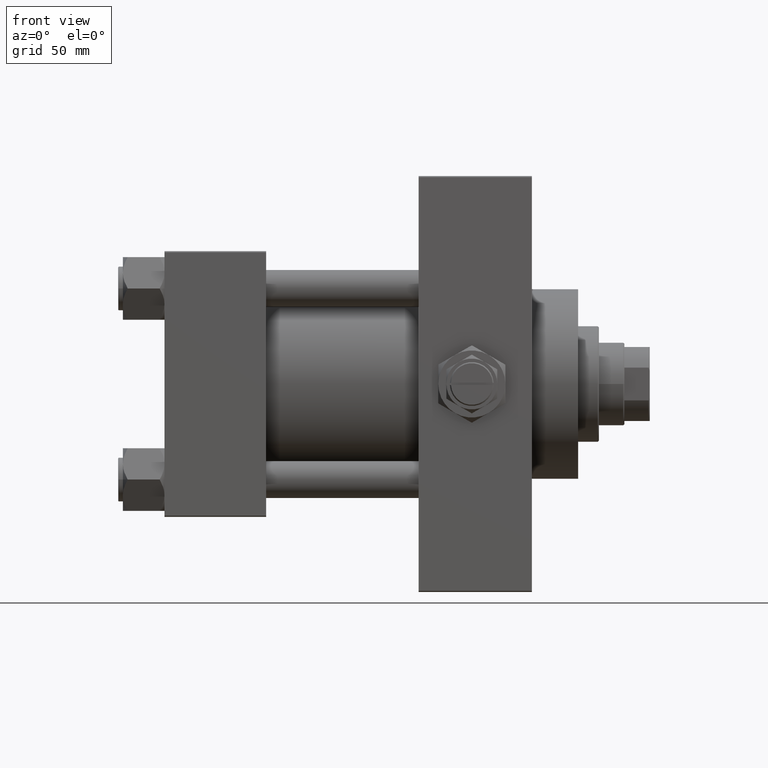
[diagram: clean part render]
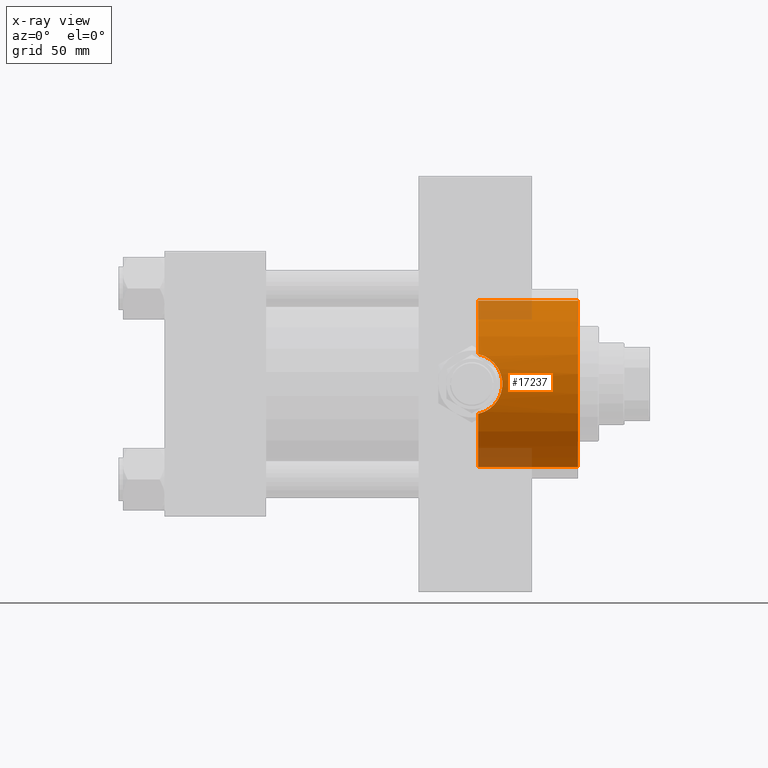
[diagram: x-ray — body ghosted, one internal face saturated and labeled with its STEP entity id]
A machine part, front view, then the same camera in x-ray: the body is ghosted and one INTERNAL B-rep face — a face not visible from any outside direction — is saturated and labeled: STEP entity #17237.
In plain terms, the highlighted cylindrical surface (partial cylindrical patch) has radius 36 mm, axis along (1, 0, 0).
Its self-contained STEP definition (entity closure, byte-faithful):
#1403 = CARTESIAN_POINT ( 'NONE',  ( 136.1132085380460239, -33.62715136930765425, 12.85386591978425663 ) ) ;
#2071 = VERTEX_POINT ( 'NONE', #22516 ) ;
#2217 = EDGE_CURVE ( 'NONE', #31049, #47736, #13772, .T. ) ;
#2276 = ORIENTED_EDGE ( 'NONE', *, *, #11950, .T. ) ;
#2954 = ORIENTED_EDGE ( 'NONE', *, *, #38616, .F. ) ;
#3315 = CARTESIAN_POINT ( 'NONE',  ( 135.7400000000000091, 0.000000000000000000, 0.000000000000000000 ) ) ;
#3647 = CARTESIAN_POINT ( 'NONE',  ( 146.0882787205803197, -35.95178749193545542, -1.899113185740341603 ) ) ;
#4637 = CARTESIAN_POINT ( 'NONE',  ( 140.2252811143993085, -34.25403786948010776, 11.07714144511488819 ) ) ;
#6801 = CARTESIAN_POINT ( 'NONE',  ( 179.0000000000000000, 0.000000000000000000, -36.00000000000000000 ) ) ;
#6964 = CARTESIAN_POINT ( 'NONE',  ( 179.0000000000000000, 0.000000000000000000, 0.000000000000000000 ) ) ;
#7390 = CARTESIAN_POINT ( 'NONE',  ( 145.1774292073409072, -35.63004118577010360, -5.159373866595180935 ) ) ;
#7635 = CARTESIAN_POINT ( 'NONE',  ( 138.5933060363426534, -33.94179174322902526, -12.00173046293030410 ) ) ;
#7791 = VERTEX_POINT ( 'NONE', #43758 ) ;
#8131 = CARTESIAN_POINT ( 'NONE',  ( 145.8947141785547501, -35.88162189390808265, -3.009955031685965121 ) ) ;
#8879 = CARTESIAN_POINT ( 'NONE',  ( 143.7169491878083250, -35.15742135833136928, 7.749599987799660639 ) ) ;
#9129 = CARTESIAN_POINT ( 'NONE',  ( 142.2706759706837261, -34.74024261417464743, 9.453842015368206120 ) ) ;
#10649 = CIRCLE ( 'NONE', #38632, 36.00000000000000000 ) ;
#10813 = CYLINDRICAL_SURFACE ( 'NONE', #46969, 36.00000000000000000 ) ;
#11147 = CARTESIAN_POINT ( 'NONE',  ( 142.7693593199377062, -34.87993829756945274, -8.914406653687468207 ) ) ;
#11639 = CARTESIAN_POINT ( 'NONE',  ( 143.0185801571961122, -34.95071279789109298, -8.633489739355312054 ) ) ;
#11881 = CARTESIAN_POINT ( 'NONE',  ( 144.1473667493317805, -35.28988197082104250, -7.145511571797283246 ) ) ;
#11950 = EDGE_CURVE ( 'NONE', #33811, #31049, #47247, .T. ) ;
#12637 = CARTESIAN_POINT ( 'NONE',  ( 145.5781868588421162, -35.76909572614820121, 4.086623809376312977 ) ) ;
#12817 = DIRECTION ( 'NONE',  ( 1.000000000000000000, -0.000000000000000000, -0.000000000000000000 ) ) ;
#12880 = CARTESIAN_POINT ( 'NONE',  ( 144.3364747806118942, -35.35134026915534378, 6.811177353909294574 ) ) ;
#13341 = ORIENTED_EDGE ( 'NONE', *, *, #27914, .T. ) ;
#13772 = CIRCLE ( 'NONE', #27349, 36.00000000000000000 ) ;
#15093 = VERTEX_POINT ( 'NONE', #28294 ) ;
#17237 = ADVANCED_FACE ( 'NONE', ( #40610 ), #10813, .F. ) ;
#18711 = CARTESIAN_POINT ( 'NONE',  ( 135.7400000000000091, 0.000000000000000000, 0.000000000000000000 ) ) ;
#18804 = DIRECTION ( 'NONE',  ( 1.000000000000000000, -0.000000000000000000, -0.000000000000000000 ) ) ;
#18893 = CARTESIAN_POINT ( 'NONE',  ( 146.1371322321481330, -35.96963868881438486, -1.525551129375368076 ) ) ;
#19816 = CARTESIAN_POINT ( 'NONE',  ( 135.7400000000000091, 0.000000000000000000, -36.00000000000000000 ) ) ;
#22516 = CARTESIAN_POINT ( 'NONE',  ( 135.7400000000000091, 0.000000000000000000, -36.00000000000000000 ) ) ;
#22640 = CARTESIAN_POINT ( 'NONE',  ( 145.7033546496754468, -35.81270017918525639, -3.737456918487963797 ) ) ;
#22819 = VECTOR ( 'NONE', #12817, 1000.000000000000000 ) ;
#22894 = CARTESIAN_POINT ( 'NONE',  ( 136.4863705348068947, -33.65758481786811984, -12.77480699814712217 ) ) ;
#23636 = CARTESIAN_POINT ( 'NONE',  ( 144.1394098962385613, -35.28849287670991686, 7.129014450017024274 ) ) ;
#23889 = CARTESIAN_POINT ( 'NONE',  ( 145.9629156845497846, -35.90633945151148509, 2.621651557121447595 ) ) ;
#24135 = CARTESIAN_POINT ( 'NONE',  ( 141.4323112275375252, -34.52915186654068691, 10.18835451941007619 ) ) ;
#24386 = CARTESIAN_POINT ( 'NONE',  ( 138.6051762912404399, -33.94373400491305404, 11.99626342902757870 ) ) ;
#24642 = CARTESIAN_POINT ( 'NONE',  ( 140.5375552836967188, -34.32141923167822739, 10.86712601324282623 ) ) ;
#25336 = DIRECTION ( 'NONE',  ( 0.000000000000000000, 0.000000000000000000, -1.000000000000000000 ) ) ;
#25581 = CIRCLE ( 'NONE', #39226, 36.00000000000000000 ) ;
#26122 = VECTOR ( 'NONE', #47004, 1000.000000000000000 ) ;
#26410 = CARTESIAN_POINT ( 'NONE',  ( 145.3202010958180210, -35.67919034582471483, -4.808835186596748024 ) ) ;
#27150 = CARTESIAN_POINT ( 'NONE',  ( 144.6959585139428555, -35.46825540645414776, -6.173441884947794556 ) ) ;
#27349 = AXIS2_PLACEMENT_3D ( 'NONE', #6964, #33989, #44524 ) ;
#27654 = CARTESIAN_POINT ( 'NONE',  ( 141.1417547516502111, -34.45915333924856583, 10.42213975181991259 ) ) ;
#27902 = CARTESIAN_POINT ( 'NONE',  ( 144.8859945304910184, -35.53010638142644240, 5.835162689468446295 ) ) ;
#27914 = EDGE_CURVE ( 'NONE', #15093, #7791, #42572, .T. ) ;
#28294 = CARTESIAN_POINT ( 'NONE',  ( 135.7400000000000091, -33.59671412504502541, -12.93293470176047677 ) ) ;
#28354 = EDGE_CURVE ( 'NONE', #33811, #7791, #25581, .T. ) ;
#28391 = CARTESIAN_POINT ( 'NONE',  ( 136.4830526523835204, -33.66353356555786291, 12.75854119602012560 ) ) ;
#28638 = CARTESIAN_POINT ( 'NONE',  ( 145.6909266299917363, -35.80898173995095846, 3.721805252510570039 ) ) ;
#30160 = CARTESIAN_POINT ( 'NONE',  ( 139.2634667834693687, -34.05975999988856984, -11.66637162473796963 ) ) ;
#30408 = CARTESIAN_POINT ( 'NONE',  ( 146.2197635704351910, -35.99991317782383504, -0.3899398427316206339 ) ) ;
#30655 = CARTESIAN_POINT ( 'NONE',  ( 179.0000000000000000, 4.408728476930470856E-15, 36.00000000000000000 ) ) ;
#30905 = CARTESIAN_POINT ( 'NONE',  ( 143.7286871753289006, -35.15866088695765512, -7.760569906701273446 ) ) ;
#31049 = VERTEX_POINT ( 'NONE', #30655 ) ;
#31255 = CARTESIAN_POINT ( 'NONE',  ( 135.7400000000000091, 4.408728476930470856E-15, 36.00000000000000000 ) ) ;
#31833 = LINE ( 'NONE', #19816, #22819 ) ;
#32146 = CARTESIAN_POINT ( 'NONE',  ( 146.1552577846638030, -35.97607714065905782, 1.508294515622385479 ) ) ;
#32391 = CARTESIAN_POINT ( 'NONE',  ( 139.2703969792703163, -34.06113284969205068, 11.66224338757623791 ) ) ;
#33811 = VERTEX_POINT ( 'NONE', #31255 ) ;
#33989 = DIRECTION ( 'NONE',  ( 1.000000000000000000, 0.000000000000000000, 0.000000000000000000 ) ) ;
#34180 = CARTESIAN_POINT ( 'NONE',  ( 135.7400000000000091, -33.59671412504502541, -12.93293470176047677 ) ) ;
#35664 = CARTESIAN_POINT ( 'NONE',  ( 146.2204654152534715, -36.00017091079580922, 0.7555805454783947051 ) ) ;
#36159 = CARTESIAN_POINT ( 'NONE',  ( 137.5630435524126085, -33.79252632900233522, 12.41317920266252095 ) ) ;
#36730 = EDGE_LOOP ( 'NONE', ( #46512, #2276, #46761, #46551, #2954, #13341 ) ) ;
#37504 = DIRECTION ( 'NONE',  ( 0.000000000000000000, 0.000000000000000000, -1.000000000000000000 ) ) ;
#37927 = CARTESIAN_POINT ( 'NONE',  ( 137.2054463598958591, -33.74086444373506311, -12.55550984369233447 ) ) ;
#38177 = CARTESIAN_POINT ( 'NONE',  ( 140.5474911551487480, -34.31910339503981078, -10.87982629903011045 ) ) ;
#38616 = EDGE_CURVE ( 'NONE', #15093, #2071, #10649, .T. ) ;
#38632 = AXIS2_PLACEMENT_3D ( 'NONE', #40981, #40511, #44258 ) ;
#39226 = AXIS2_PLACEMENT_3D ( 'NONE', #18711, #48265, #37504 ) ;
#39246 = CARTESIAN_POINT ( 'NONE',  ( 135.7400000000000091, 4.408728476930470856E-15, 36.00000000000000000 ) ) ;
#39412 = CARTESIAN_POINT ( 'NONE',  ( 142.7854413968719598, -34.88242835481357673, 8.920220469445172995 ) ) ;
#39914 = CARTESIAN_POINT ( 'NONE',  ( 137.2082429394940277, -33.74627601644314723, 12.53805090881422579 ) ) ;
#40511 = DIRECTION ( 'NONE',  ( 1.000000000000000000, 0.000000000000000000, 0.000000000000000000 ) ) ;
#40610 = FACE_OUTER_BOUND ( 'NONE', #36730, .T. ) ;
#40981 = CARTESIAN_POINT ( 'NONE',  ( 135.7400000000000091, 0.000000000000000000, 0.000000000000000000 ) ) ;
#42173 = CARTESIAN_POINT ( 'NONE',  ( 142.2521418842815990, -34.73862178565919123, -9.450126880761137826 ) ) ;
#42419 = CARTESIAN_POINT ( 'NONE',  ( 144.8655034412033729, -35.52464249944090113, -5.841125651952388864 ) ) ;
#42572 = B_SPLINE_CURVE_WITH_KNOTS ( 'NONE', 3,
 ( #34180, #22894, #37927, #7635, #30160, #38177, #45436, #45925, #42173, #11147, #11639, #30905, #11881, #27150, #42419, #7390, #26410, #22640, #8131, #3647, #18893, #49421, #30408, #35664, #32146, #23889, #43168, #28638, #12637, #43909, #27902, #12880, #23636, #8879, #43413, #39412, #9129, #24135, #27654, #24642, #4637, #32391, #24386, #36159, #39914, #28391, #1403, #47410 ),
 .UNSPECIFIED., .F., .F.,
 ( 4, 2, 2, 2, 2, 2, 2, 2, 2, 2, 2, 2, 2, 2, 2, 2, 2, 2, 2, 2, 2, 2, 2, 4 ),
 ( 0.000000000000000000, 0.002261541487190014185, 0.004523082974380028369, 0.006784624461570043855, 0.007915395205165046827, 0.009046165948760049799, 0.01130770743595010952, 0.01243847817954513851, 0.01356924892314016751, 0.01583079041033022896, 0.01696156115392526142, 0.01809233189752029042, 0.02035387338471035187, 0.02148464412830539128, 0.02261541487190042374, 0.02487695635909046438, 0.02600772710268548990, 0.02713849784628051195, 0.02940003933347055606, 0.03053081007706554689, 0.03166158082066054119, 0.03392312230785051591, 0.03505389305144546858, 0.03618466379504041430 ),
 .UNSPECIFIED. ) ;
#43168 = CARTESIAN_POINT ( 'NONE',  ( 145.8829549964506782, -35.87748714674541617, 2.990137726740099477 ) ) ;
#43413 = CARTESIAN_POINT ( 'NONE',  ( 143.4916658138077423, -35.08925744010397096, 8.051866093655579704 ) ) ;
#43758 = CARTESIAN_POINT ( 'NONE',  ( 135.7400000000000091, -33.59671412504501831, 12.93293470176048032 ) ) ;
#43909 = CARTESIAN_POINT ( 'NONE',  ( 145.1971085353886508, -35.63627862537938995, 5.154654075414369707 ) ) ;
#44258 = DIRECTION ( 'NONE',  ( 0.000000000000000000, 0.000000000000000000, -1.000000000000000000 ) ) ;
#44524 = DIRECTION ( 'NONE',  ( 0.000000000000000000, 0.000000000000000000, -1.000000000000000000 ) ) ;
#45436 = CARTESIAN_POINT ( 'NONE',  ( 141.1461456704165869, -34.45721300195066306, -10.43832106051816133 ) ) ;
#45925 = CARTESIAN_POINT ( 'NONE',  ( 141.9832966455934695, -34.66782771197624413, -9.705989920600368137 ) ) ;
#46512 = ORIENTED_EDGE ( 'NONE', *, *, #28354, .F. ) ;
#46551 = ORIENTED_EDGE ( 'NONE', *, *, #46771, .F. ) ;
#46761 = ORIENTED_EDGE ( 'NONE', *, *, #2217, .T. ) ;
#46771 = EDGE_CURVE ( 'NONE', #2071, #47736, #31833, .T. ) ;
#46969 = AXIS2_PLACEMENT_3D ( 'NONE', #3315, #18804, #25336 ) ;
#47004 = DIRECTION ( 'NONE',  ( 1.000000000000000000, -0.000000000000000000, -0.000000000000000000 ) ) ;
#47247 = LINE ( 'NONE', #39246, #26122 ) ;
#47410 = CARTESIAN_POINT ( 'NONE',  ( 135.7400000000000091, -33.59671412504501831, 12.93293470176048032 ) ) ;
#47736 = VERTEX_POINT ( 'NONE', #6801 ) ;
#48265 = DIRECTION ( 'NONE',  ( 1.000000000000000000, 0.000000000000000000, 0.000000000000000000 ) ) ;
#49421 = CARTESIAN_POINT ( 'NONE',  ( 146.2028789376522013, -35.99370328767532357, -0.7717106264536102156 ) ) ;